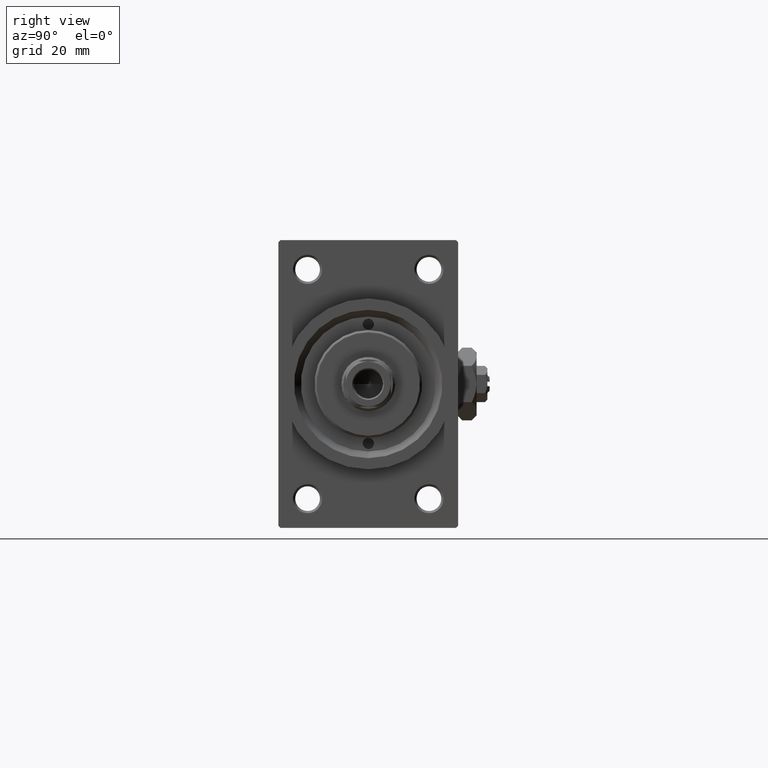
[diagram: clean part render]
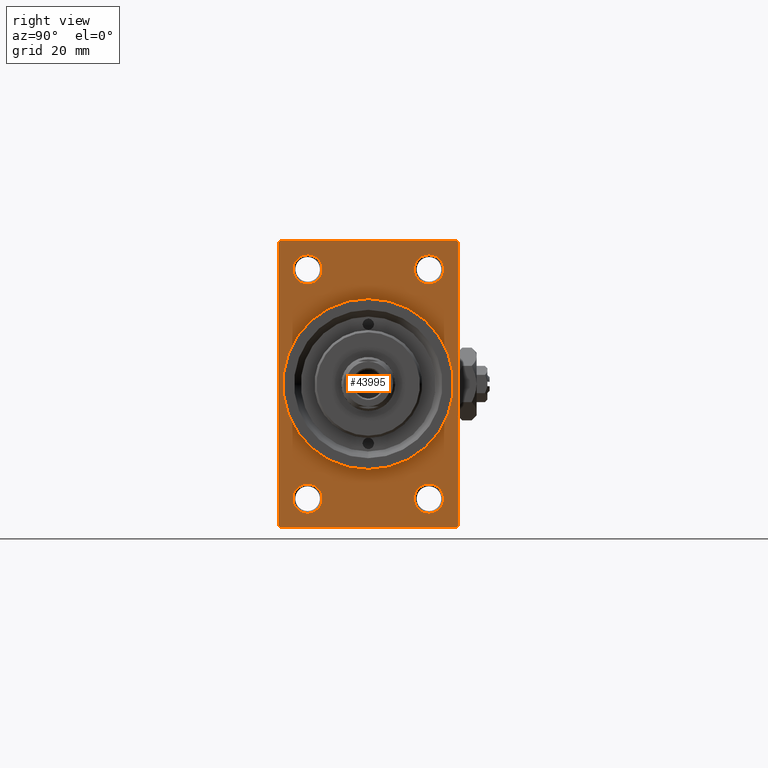
[diagram: same view with one face highlighted and labeled with its STEP entity id]
A machine part, right view. The second image highlights one B-rep face of the part: STEP entity #43995.
In plain terms, the highlighted planar face has unit normal (-1, 0, 0).
Its self-contained STEP definition (entity closure, byte-faithful):
#56 = DIRECTION ( 'NONE',  ( -1.000000000000000000, -0.000000000000000000, -0.000000000000000000 ) ) ;
#763 = CARTESIAN_POINT ( 'NONE',  ( 109.0000000000000142, 19.49999999999998579, 32.00000000000000000 ) ) ;
#848 = DIRECTION ( 'NONE',  ( 0.000000000000000000, 0.000000000000000000, -1.000000000000000000 ) ) ;
#953 = DIRECTION ( 'NONE',  ( -1.000000000000000000, 0.000000000000000000, -0.000000000000000000 ) ) ;
#957 = ORIENTED_EDGE ( 'NONE', *, *, #32212, .F. ) ;
#1175 = EDGE_LOOP ( 'NONE', ( #33768, #957 ) ) ;
#1505 = ORIENTED_EDGE ( 'NONE', *, *, #14566, .T. ) ;
#1855 = EDGE_CURVE ( 'NONE', #16414, #47147, #15149, .T. ) ;
#2149 = AXIS2_PLACEMENT_3D ( 'NONE', #5268, #5015, #31679 ) ;
#2270 = CARTESIAN_POINT ( 'NONE',  ( 109.0000000000000142, -19.49999999999998579, -32.00000000000000000 ) ) ;
#2369 = CIRCLE ( 'NONE', #3157, 19.00000000000000000 ) ;
#2719 = AXIS2_PLACEMENT_3D ( 'NONE', #47352, #36385, #32661 ) ;
#2723 = CIRCLE ( 'NONE', #38507, 3.250000000000002665 ) ;
#3131 = ORIENTED_EDGE ( 'NONE', *, *, #27287, .T. ) ;
#3157 = AXIS2_PLACEMENT_3D ( 'NONE', #6975, #37329, #22162 ) ;
#4189 = PLANE ( 'NONE',  #17740 ) ;
#4309 = CARTESIAN_POINT ( 'NONE',  ( 109.0000000000000142, 20.00000000000000000, -31.49999999999998579 ) ) ;
#4513 = VERTEX_POINT ( 'NONE', #37752 ) ;
#4890 = VERTEX_POINT ( 'NONE', #35382 ) ;
#5015 = DIRECTION ( 'NONE',  ( -1.000000000000000000, -0.000000000000000000, -0.000000000000000000 ) ) ;
#5268 = CARTESIAN_POINT ( 'NONE',  ( 109.0000000000000142, -13.50000000000000533, -25.49999999999999645 ) ) ;
#5271 = CARTESIAN_POINT ( 'NONE',  ( 109.0000000000000142, -20.00000000000000000, -31.49999999999997868 ) ) ;
#5638 = ORIENTED_EDGE ( 'NONE', *, *, #43944, .T. ) ;
#5691 = ORIENTED_EDGE ( 'NONE', *, *, #34281, .T. ) ;
#5810 = CIRCLE ( 'NONE', #6596, 3.250000000000002665 ) ;
#5934 = DIRECTION ( 'NONE',  ( -1.000000000000000000, -0.000000000000000000, -0.000000000000000000 ) ) ;
#6596 = AXIS2_PLACEMENT_3D ( 'NONE', #13936, #40552, #48774 ) ;
#6929 = EDGE_CURVE ( 'NONE', #4513, #9606, #2723, .T. ) ;
#6958 = CARTESIAN_POINT ( 'NONE',  ( 109.0000000000000142, -13.50000000000000178, 22.25000000000000000 ) ) ;
#6975 = CARTESIAN_POINT ( 'NONE',  ( 109.0000000000000142, 0.000000000000000000, 0.000000000000000000 ) ) ;
#7123 = ORIENTED_EDGE ( 'NONE', *, *, #46331, .T. ) ;
#7593 = CIRCLE ( 'NONE', #13963, 19.00000000000000000 ) ;
#7723 = CARTESIAN_POINT ( 'NONE',  ( 109.0000000000000142, -20.00000000000000000, 31.49999999999997868 ) ) ;
#7932 = FACE_BOUND ( 'NONE', #30617, .T. ) ;
#8039 = EDGE_CURVE ( 'NONE', #33444, #38984, #45724, .T. ) ;
#9483 = LINE ( 'NONE', #35135, #10190 ) ;
#9606 = VERTEX_POINT ( 'NONE', #6958 ) ;
#9714 = EDGE_CURVE ( 'NONE', #4890, #30513, #7593, .T. ) ;
#9930 = ORIENTED_EDGE ( 'NONE', *, *, #15563, .T. ) ;
#10190 = VECTOR ( 'NONE', #47318, 1000.000000000000000 ) ;
#10217 = VERTEX_POINT ( 'NONE', #22210 ) ;
#10513 = CARTESIAN_POINT ( 'NONE',  ( 109.0000000000000142, 19.49999999999998579, 32.00000000000000000 ) ) ;
#10540 = ORIENTED_EDGE ( 'NONE', *, *, #25096, .T. ) ;
#10697 = EDGE_CURVE ( 'NONE', #38814, #16764, #15908, .T. ) ;
#11143 = ORIENTED_EDGE ( 'NONE', *, *, #8039, .T. ) ;
#12142 = CARTESIAN_POINT ( 'NONE',  ( 109.0000000000000142, -13.50000000000000533, -28.74999999999999645 ) ) ;
#13450 = CARTESIAN_POINT ( 'NONE',  ( 109.0000000000000142, 20.00000000000000000, 32.00000000000000000 ) ) ;
#13936 = CARTESIAN_POINT ( 'NONE',  ( 109.0000000000000142, 13.49999999999999822, -25.50000000000000000 ) ) ;
#13963 = AXIS2_PLACEMENT_3D ( 'NONE', #43694, #32016, #25021 ) ;
#13995 = VECTOR ( 'NONE', #42031, 1000.000000000000000 ) ;
#14566 = EDGE_CURVE ( 'NONE', #26391, #10217, #9483, .T. ) ;
#14769 = DIRECTION ( 'NONE',  ( 0.000000000000000000, 0.000000000000000000, 1.000000000000000000 ) ) ;
#15149 = LINE ( 'NONE', #30353, #43131 ) ;
#15563 = EDGE_CURVE ( 'NONE', #20066, #45222, #49028, .T. ) ;
#15658 = FACE_BOUND ( 'NONE', #1175, .T. ) ;
#15799 = LINE ( 'NONE', #13450, #28926 ) ;
#15908 = LINE ( 'NONE', #19390, #13995 ) ;
#16010 = CARTESIAN_POINT ( 'NONE',  ( 109.0000000000000142, 13.49999999999999822, 25.50000000000000355 ) ) ;
#16178 = CARTESIAN_POINT ( 'NONE',  ( 109.0000000000000142, -13.50000000000000178, 25.50000000000000355 ) ) ;
#16414 = VERTEX_POINT ( 'NONE', #19547 ) ;
#16764 = VERTEX_POINT ( 'NONE', #2270 ) ;
#17740 = AXIS2_PLACEMENT_3D ( 'NONE', #35064, #953, #41526 ) ;
#18719 = AXIS2_PLACEMENT_3D ( 'NONE', #16010, #38150, #42379 ) ;
#18856 = EDGE_LOOP ( 'NONE', ( #10540, #5638 ) ) ;
#19084 = ORIENTED_EDGE ( 'NONE', *, *, #42659, .T. ) ;
#19390 = CARTESIAN_POINT ( 'NONE',  ( 109.0000000000000142, 20.00000000000000000, -32.00000000000000000 ) ) ;
#19547 = CARTESIAN_POINT ( 'NONE',  ( 109.0000000000000142, -20.00000000000000000, 31.49999999999997868 ) ) ;
#19675 = LINE ( 'NONE', #7723, #39037 ) ;
#19732 = CIRCLE ( 'NONE', #38802, 3.250000000000002665 ) ;
#19884 = FACE_BOUND ( 'NONE', #28251, .T. ) ;
#20066 = VERTEX_POINT ( 'NONE', #12142 ) ;
#20557 = DIRECTION ( 'NONE',  ( -0.000000000000000000, 0.7071067811865474617, 0.7071067811865474617 ) ) ;
#21004 = DIRECTION ( 'NONE',  ( -1.000000000000000000, -0.000000000000000000, -0.000000000000000000 ) ) ;
#21856 = DIRECTION ( 'NONE',  ( 0.000000000000000000, 0.000000000000000000, 1.000000000000000000 ) ) ;
#22162 = DIRECTION ( 'NONE',  ( 0.000000000000000000, 0.000000000000000000, -1.000000000000000000 ) ) ;
#22210 = CARTESIAN_POINT ( 'NONE',  ( 109.0000000000000142, -19.49999999999998579, 31.99999999999999289 ) ) ;
#24190 = AXIS2_PLACEMENT_3D ( 'NONE', #40512, #5934, #21856 ) ;
#24195 = CIRCLE ( 'NONE', #2719, 3.249999999999961364 ) ;
#24296 = ORIENTED_EDGE ( 'NONE', *, *, #1855, .T. ) ;
#24393 = CARTESIAN_POINT ( 'NONE',  ( 109.0000000000000142, 13.49999999999999822, -25.50000000000000000 ) ) ;
#24541 = CARTESIAN_POINT ( 'NONE',  ( 109.0000000000000142, 20.00000000000000000, -31.49999999999998579 ) ) ;
#24628 = VERTEX_POINT ( 'NONE', #39030 ) ;
#24739 = DIRECTION ( 'NONE',  ( 0.000000000000000000, 0.000000000000000000, 1.000000000000000000 ) ) ;
#24969 = CIRCLE ( 'NONE', #24190, 3.250000000000002665 ) ;
#25021 = DIRECTION ( 'NONE',  ( 0.000000000000000000, 0.000000000000000000, -1.000000000000000000 ) ) ;
#25096 = EDGE_CURVE ( 'NONE', #24628, #44650, #19732, .T. ) ;
#25762 = CARTESIAN_POINT ( 'NONE',  ( 109.0000000000000142, -19.49999999999998579, -32.00000000000000000 ) ) ;
#26391 = VERTEX_POINT ( 'NONE', #763 ) ;
#26712 = EDGE_CURVE ( 'NONE', #38814, #36531, #31542, .T. ) ;
#26743 = EDGE_LOOP ( 'NONE', ( #24296, #38542, #36119, #42528, #47767, #3131, #1505, #27657 ) ) ;
#27287 = EDGE_CURVE ( 'NONE', #44718, #26391, #44616, .T. ) ;
#27442 = CARTESIAN_POINT ( 'NONE',  ( 109.0000000000000142, -13.50000000000000533, -22.24999999999999289 ) ) ;
#27657 = ORIENTED_EDGE ( 'NONE', *, *, #34854, .T. ) ;
#28251 = EDGE_LOOP ( 'NONE', ( #9930, #5691 ) ) ;
#28926 = VECTOR ( 'NONE', #848, 1000.000000000000000 ) ;
#29508 = CARTESIAN_POINT ( 'NONE',  ( 109.0000000000000142, 2.326828918379970970E-15, -19.00000000000000000 ) ) ;
#30353 = CARTESIAN_POINT ( 'NONE',  ( 109.0000000000000142, -20.00000000000000000, 31.99999999999999289 ) ) ;
#30411 = EDGE_CURVE ( 'NONE', #47147, #16764, #36946, .T. ) ;
#30513 = VERTEX_POINT ( 'NONE', #29508 ) ;
#30617 = EDGE_LOOP ( 'NONE', ( #7123, #31574 ) ) ;
#31108 = FACE_OUTER_BOUND ( 'NONE', #26743, .T. ) ;
#31542 = LINE ( 'NONE', #24541, #42853 ) ;
#31574 = ORIENTED_EDGE ( 'NONE', *, *, #6929, .T. ) ;
#31679 = DIRECTION ( 'NONE',  ( 0.000000000000000000, 0.000000000000000000, 1.000000000000000000 ) ) ;
#31724 = VECTOR ( 'NONE', #47610, 1000.000000000000114 ) ;
#32016 = DIRECTION ( 'NONE',  ( 1.000000000000000000, 0.000000000000000000, 0.000000000000000000 ) ) ;
#32212 = EDGE_CURVE ( 'NONE', #30513, #4890, #2369, .T. ) ;
#32661 = DIRECTION ( 'NONE',  ( 0.000000000000000000, 0.000000000000000000, 1.000000000000000000 ) ) ;
#33444 = VERTEX_POINT ( 'NONE', #48003 ) ;
#33768 = ORIENTED_EDGE ( 'NONE', *, *, #9714, .F. ) ;
#34077 = FACE_BOUND ( 'NONE', #46642, .T. ) ;
#34281 = EDGE_CURVE ( 'NONE', #45222, #20066, #39001, .T. ) ;
#34286 = CARTESIAN_POINT ( 'NONE',  ( 109.0000000000000142, 19.49999999999998579, -32.00000000000000000 ) ) ;
#34319 = FACE_BOUND ( 'NONE', #18856, .T. ) ;
#34854 = EDGE_CURVE ( 'NONE', #10217, #16414, #19675, .T. ) ;
#34950 = CARTESIAN_POINT ( 'NONE',  ( 109.0000000000000142, 20.00000000000000000, 31.49999999999998579 ) ) ;
#35064 = CARTESIAN_POINT ( 'NONE',  ( 109.0000000000000142, 0.000000000000000000, 0.000000000000000000 ) ) ;
#35135 = CARTESIAN_POINT ( 'NONE',  ( 109.0000000000000142, 20.00000000000000000, 32.00000000000000000 ) ) ;
#35382 = CARTESIAN_POINT ( 'NONE',  ( 109.0000000000000142, 0.000000000000000000, 19.00000000000000000 ) ) ;
#35757 = CARTESIAN_POINT ( 'NONE',  ( 109.0000000000000142, 13.49999999999999822, 22.25000000000004263 ) ) ;
#36119 = ORIENTED_EDGE ( 'NONE', *, *, #10697, .F. ) ;
#36385 = DIRECTION ( 'NONE',  ( -1.000000000000000000, -0.000000000000000000, -0.000000000000000000 ) ) ;
#36531 = VERTEX_POINT ( 'NONE', #4309 ) ;
#36946 = LINE ( 'NONE', #25762, #43744 ) ;
#37329 = DIRECTION ( 'NONE',  ( 1.000000000000000000, 0.000000000000000000, 0.000000000000000000 ) ) ;
#37752 = CARTESIAN_POINT ( 'NONE',  ( 109.0000000000000142, -13.50000000000000178, 28.75000000000000355 ) ) ;
#38039 = DIRECTION ( 'NONE',  ( 0.000000000000000000, 0.000000000000000000, -1.000000000000000000 ) ) ;
#38150 = DIRECTION ( 'NONE',  ( -1.000000000000000000, -0.000000000000000000, -0.000000000000000000 ) ) ;
#38507 = AXIS2_PLACEMENT_3D ( 'NONE', #16178, #56, #14769 ) ;
#38542 = ORIENTED_EDGE ( 'NONE', *, *, #30411, .T. ) ;
#38802 = AXIS2_PLACEMENT_3D ( 'NONE', #24393, #47531, #39573 ) ;
#38814 = VERTEX_POINT ( 'NONE', #34286 ) ;
#38825 = DIRECTION ( 'NONE',  ( -0.000000000000000000, -0.7071067811865474617, -0.7071067811865474617 ) ) ;
#38984 = VERTEX_POINT ( 'NONE', #35757 ) ;
#39001 = CIRCLE ( 'NONE', #45366, 3.250000000000002665 ) ;
#39030 = CARTESIAN_POINT ( 'NONE',  ( 109.0000000000000142, 13.49999999999999822, -28.75000000000000000 ) ) ;
#39037 = VECTOR ( 'NONE', #38825, 1000.000000000000114 ) ;
#39573 = DIRECTION ( 'NONE',  ( 0.000000000000000000, 0.000000000000000000, 1.000000000000000000 ) ) ;
#39675 = CARTESIAN_POINT ( 'NONE',  ( 109.0000000000000142, -13.50000000000000533, -25.49999999999999645 ) ) ;
#40512 = CARTESIAN_POINT ( 'NONE',  ( 109.0000000000000142, -13.50000000000000178, 25.50000000000000355 ) ) ;
#40552 = DIRECTION ( 'NONE',  ( -1.000000000000000000, -0.000000000000000000, -0.000000000000000000 ) ) ;
#41526 = DIRECTION ( 'NONE',  ( -0.000000000000000000, 0.000000000000000000, 1.000000000000000000 ) ) ;
#42031 = DIRECTION ( 'NONE',  ( 0.000000000000000000, -1.000000000000000000, 0.000000000000000000 ) ) ;
#42379 = DIRECTION ( 'NONE',  ( 0.000000000000000000, 0.000000000000000000, 1.000000000000000000 ) ) ;
#42528 = ORIENTED_EDGE ( 'NONE', *, *, #26712, .T. ) ;
#42659 = EDGE_CURVE ( 'NONE', #38984, #33444, #24195, .T. ) ;
#42853 = VECTOR ( 'NONE', #20557, 1000.000000000000114 ) ;
#43131 = VECTOR ( 'NONE', #38039, 1000.000000000000000 ) ;
#43694 = CARTESIAN_POINT ( 'NONE',  ( 109.0000000000000142, 0.000000000000000000, 0.000000000000000000 ) ) ;
#43744 = VECTOR ( 'NONE', #44428, 1000.000000000000000 ) ;
#43944 = EDGE_CURVE ( 'NONE', #44650, #24628, #5810, .T. ) ;
#43995 = ADVANCED_FACE ( 'NONE', ( #7932, #19884, #34319, #34077, #15658, #31108 ), #4189, .F. ) ;
#44428 = DIRECTION ( 'NONE',  ( 0.000000000000000000, 0.7071067811865426878, -0.7071067811865524577 ) ) ;
#44616 = LINE ( 'NONE', #10513, #31724 ) ;
#44650 = VERTEX_POINT ( 'NONE', #47127 ) ;
#44718 = VERTEX_POINT ( 'NONE', #34950 ) ;
#45222 = VERTEX_POINT ( 'NONE', #27442 ) ;
#45366 = AXIS2_PLACEMENT_3D ( 'NONE', #39675, #21004, #24739 ) ;
#45724 = CIRCLE ( 'NONE', #18719, 3.249999999999961364 ) ;
#45872 = EDGE_CURVE ( 'NONE', #44718, #36531, #15799, .T. ) ;
#46331 = EDGE_CURVE ( 'NONE', #9606, #4513, #24969, .T. ) ;
#46642 = EDGE_LOOP ( 'NONE', ( #19084, #11143 ) ) ;
#47127 = CARTESIAN_POINT ( 'NONE',  ( 109.0000000000000142, 13.49999999999999822, -22.24999999999999645 ) ) ;
#47147 = VERTEX_POINT ( 'NONE', #5271 ) ;
#47318 = DIRECTION ( 'NONE',  ( 0.000000000000000000, -1.000000000000000000, -1.734723475976807094E-16 ) ) ;
#47352 = CARTESIAN_POINT ( 'NONE',  ( 109.0000000000000142, 13.49999999999999822, 25.50000000000000355 ) ) ;
#47531 = DIRECTION ( 'NONE',  ( -1.000000000000000000, -0.000000000000000000, -0.000000000000000000 ) ) ;
#47610 = DIRECTION ( 'NONE',  ( 0.000000000000000000, -0.7071067811865474617, 0.7071067811865474617 ) ) ;
#47767 = ORIENTED_EDGE ( 'NONE', *, *, #45872, .F. ) ;
#48003 = CARTESIAN_POINT ( 'NONE',  ( 109.0000000000000142, 13.49999999999999822, 28.74999999999996803 ) ) ;
#48774 = DIRECTION ( 'NONE',  ( 0.000000000000000000, 0.000000000000000000, 1.000000000000000000 ) ) ;
#49028 = CIRCLE ( 'NONE', #2149, 3.250000000000002665 ) ;